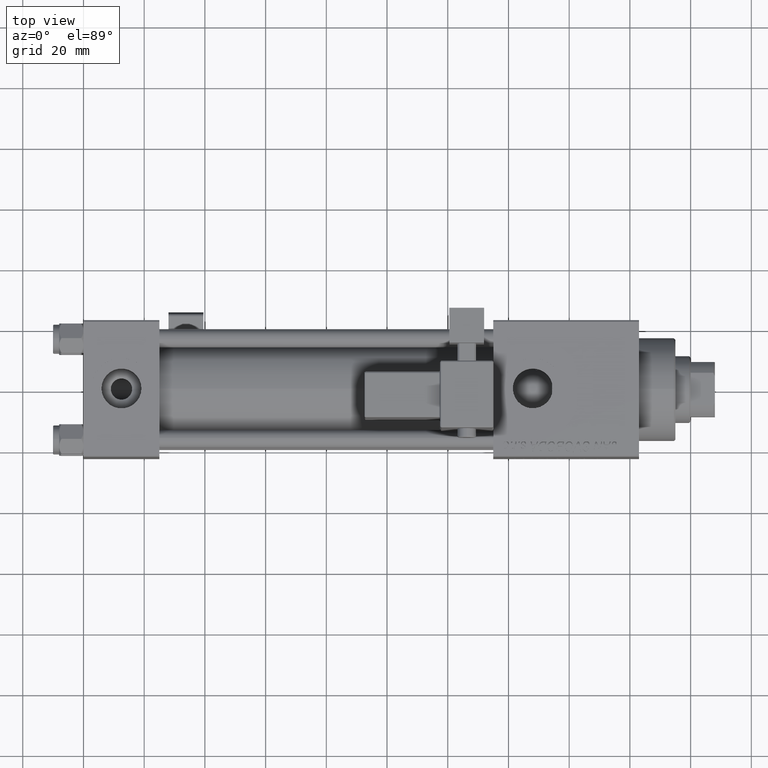
[diagram: clean part render]
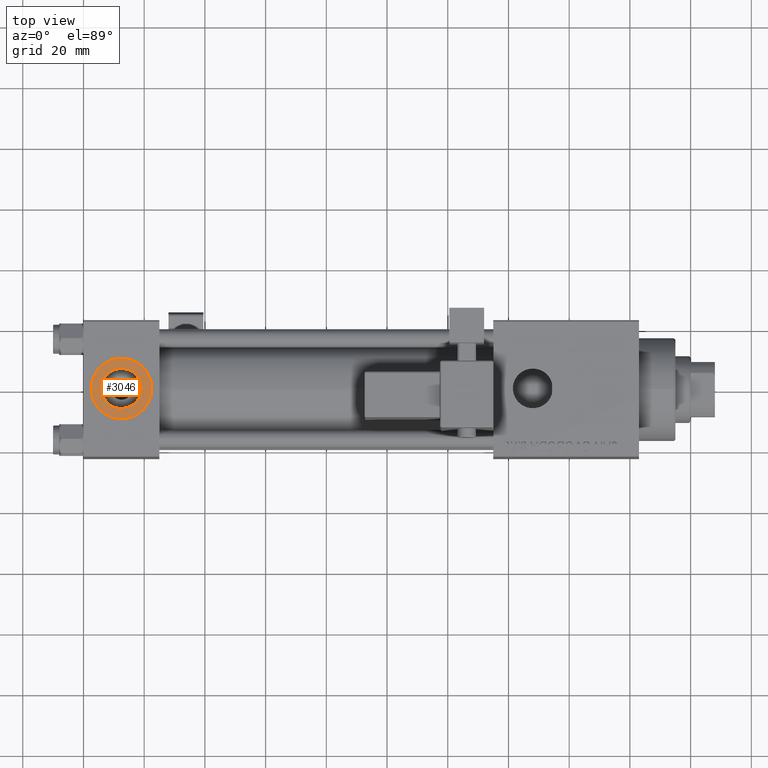
[diagram: same view with one face highlighted and labeled with its STEP entity id]
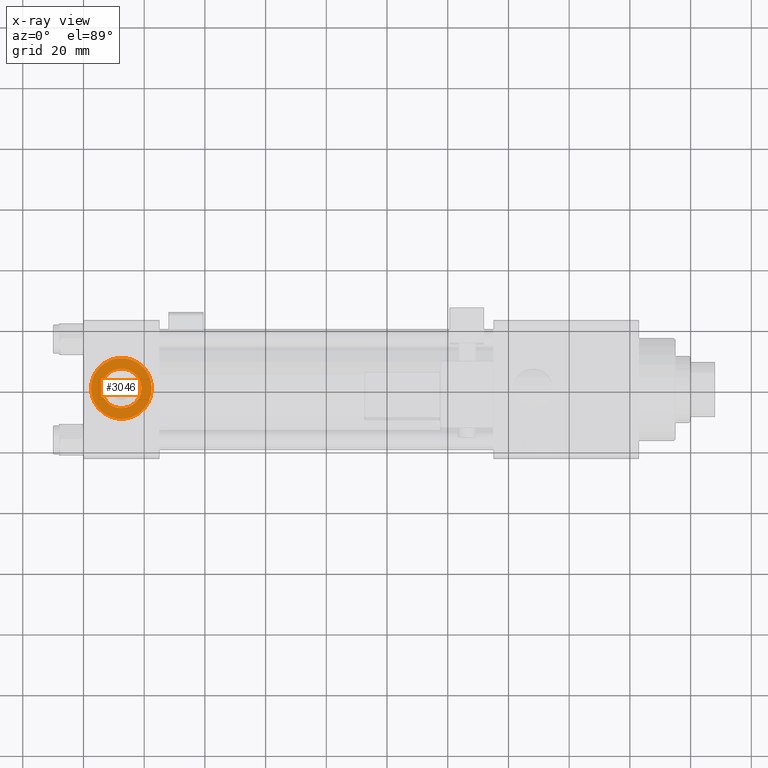
[diagram: x-ray of the same camera — body ghosted, the highlighted face saturated]
A machine part, top view. The second image highlights one B-rep face of the part: STEP entity #3046.
The next image is the same camera in x-ray: the body ghosted, the highlighted face saturated — about 0% of this face is hidden behind the body in this view.
In plain terms, the highlighted planar face has unit normal (0, 0, 1).
Its self-contained STEP definition (entity closure, byte-faithful):
#553 = EDGE_CURVE ( 'NONE', #1818, #11485, #49200, .T. ) ;
#1341 = CIRCLE ( 'NONE', #53418, 9.999999999999998224 ) ;
#1818 = VERTEX_POINT ( 'NONE', #22612 ) ;
#2324 = DIRECTION ( 'NONE',  ( 0.000000000000000000, 0.000000000000000000, 1.000000000000000000 ) ) ;
#3046 = ADVANCED_FACE ( 'NONE', ( #31520, #5691 ), #30979, .T. ) ;
#5691 = FACE_OUTER_BOUND ( 'NONE', #16966, .T. ) ;
#5963 = CARTESIAN_POINT ( 'NONE',  ( 12.50000000000000000, -1.734723475976807094E-15, 22.30000000000000071 ) ) ;
#7159 = CARTESIAN_POINT ( 'NONE',  ( 12.50000000000000000, -1.734723475976807094E-15, 22.30000000000000071 ) ) ;
#8209 = ORIENTED_EDGE ( 'NONE', *, *, #10270, .T. ) ;
#8895 = CIRCLE ( 'NONE', #52310, 9.999999999999998224 ) ;
#9362 = AXIS2_PLACEMENT_3D ( 'NONE', #5963, #43765, #35329 ) ;
#10270 = EDGE_CURVE ( 'NONE', #37977, #19077, #8895, .T. ) ;
#11485 = VERTEX_POINT ( 'NONE', #46815 ) ;
#16966 = EDGE_LOOP ( 'NONE', ( #24522, #8209 ) ) ;
#18697 = CARTESIAN_POINT ( 'NONE',  ( 12.50000000000000000, -1.734723475976807094E-15, 22.30000000000000071 ) ) ;
#19077 = VERTEX_POINT ( 'NONE', #26340 ) ;
#20514 = EDGE_CURVE ( 'NONE', #19077, #37977, #1341, .T. ) ;
#20976 = CARTESIAN_POINT ( 'NONE',  ( 12.50000000000000000, -1.734723475976807094E-15, 22.30000000000000071 ) ) ;
#22229 = EDGE_LOOP ( 'NONE', ( #52681, #28602 ) ) ;
#22612 = CARTESIAN_POINT ( 'NONE',  ( 5.920000000000002593, -9.289058821378490386E-16, 22.30000000000000071 ) ) ;
#23548 = DIRECTION ( 'NONE',  ( 1.000000000000000000, 0.000000000000000000, 0.000000000000000000 ) ) ;
#23841 = CIRCLE ( 'NONE', #39447, 6.579999999999999183 ) ;
#24522 = ORIENTED_EDGE ( 'NONE', *, *, #20514, .T. ) ;
#25251 = CARTESIAN_POINT ( 'NONE',  ( 2.500000000000003997, -5.100766768294543310E-16, 22.30000000000000071 ) ) ;
#26340 = CARTESIAN_POINT ( 'NONE',  ( 22.50000000000000000, -1.734723475976807094E-15, 22.30000000000000071 ) ) ;
#28602 = ORIENTED_EDGE ( 'NONE', *, *, #553, .F. ) ;
#30979 = PLANE ( 'NONE',  #9362 ) ;
#31520 = FACE_BOUND ( 'NONE', #22229, .T. ) ;
#35329 = DIRECTION ( 'NONE',  ( 1.000000000000000000, 0.000000000000000000, -0.000000000000000000 ) ) ;
#37308 = DIRECTION ( 'NONE',  ( 1.000000000000000000, 0.000000000000000000, 0.000000000000000000 ) ) ;
#37977 = VERTEX_POINT ( 'NONE', #25251 ) ;
#39447 = AXIS2_PLACEMENT_3D ( 'NONE', #7159, #40073, #40606 ) ;
#40073 = DIRECTION ( 'NONE',  ( 0.000000000000000000, 0.000000000000000000, 1.000000000000000000 ) ) ;
#40288 = EDGE_CURVE ( 'NONE', #11485, #1818, #23841, .T. ) ;
#40606 = DIRECTION ( 'NONE',  ( 1.000000000000000000, 0.000000000000000000, 0.000000000000000000 ) ) ;
#43765 = DIRECTION ( 'NONE',  ( 0.000000000000000000, 0.000000000000000000, 1.000000000000000000 ) ) ;
#43981 = AXIS2_PLACEMENT_3D ( 'NONE', #20976, #45714, #37308 ) ;
#44506 = DIRECTION ( 'NONE',  ( 0.000000000000000000, 0.000000000000000000, 1.000000000000000000 ) ) ;
#45714 = DIRECTION ( 'NONE',  ( 0.000000000000000000, 0.000000000000000000, 1.000000000000000000 ) ) ;
#46815 = CARTESIAN_POINT ( 'NONE',  ( 19.07999999999999829, -1.734723475976807094E-15, 22.30000000000000071 ) ) ;
#48038 = DIRECTION ( 'NONE',  ( 1.000000000000000000, 0.000000000000000000, 0.000000000000000000 ) ) ;
#48275 = CARTESIAN_POINT ( 'NONE',  ( 12.50000000000000000, -1.734723475976807094E-15, 22.30000000000000071 ) ) ;
#49200 = CIRCLE ( 'NONE', #43981, 6.579999999999999183 ) ;
#52310 = AXIS2_PLACEMENT_3D ( 'NONE', #18697, #44506, #48038 ) ;
#52681 = ORIENTED_EDGE ( 'NONE', *, *, #40288, .F. ) ;
#53418 = AXIS2_PLACEMENT_3D ( 'NONE', #48275, #2324, #23548 ) ;